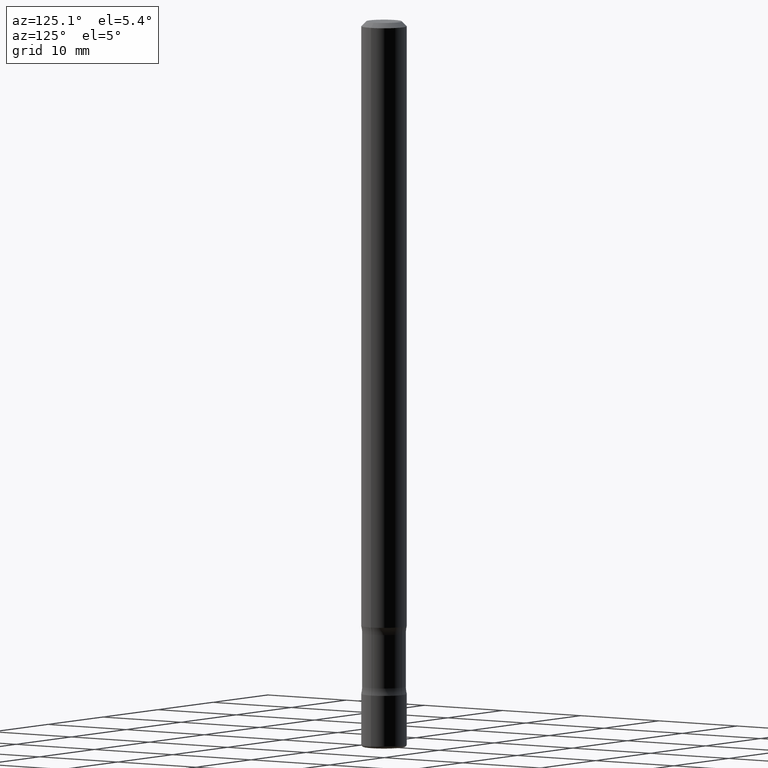
[diagram: clean part render]
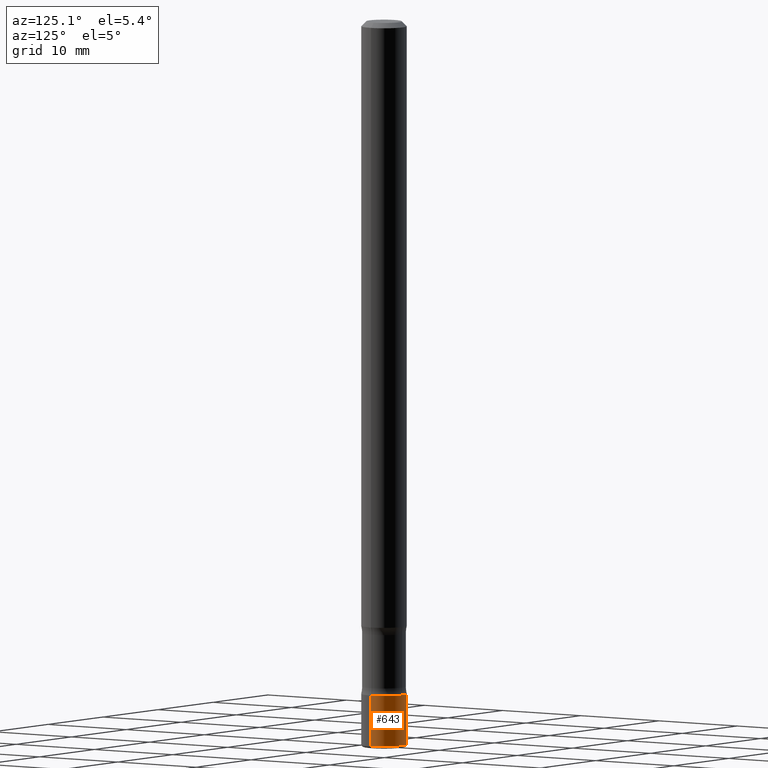
[diagram: same view with one face highlighted and labeled with its STEP entity id]
A machine part, auxiliary view. The second image highlights one B-rep face of the part: STEP entity #643.
In plain terms, the highlighted cylindrical surface (edge-blend (fillet) strip) has radius 2.3813 mm, axis along (-0, 0, 1).
Its self-contained STEP definition (entity closure, byte-faithful):
#26 = CIRCLE ( 'NONE', #91, 0.09375000000000001388 ) ;
#55 = DIRECTION ( 'NONE',  ( -2.445468806185136597E-29, 3.491481338843145583E-15, 1.000000000000000000 ) ) ;
#91 = AXIS2_PLACEMENT_3D ( 'NONE', #664, #55, #237 ) ;
#100 = EDGE_LOOP ( 'NONE', ( #608, #650, #145, #359 ) ) ;
#132 = CARTESIAN_POINT ( 'NONE',  ( 0.09375000000000005551, -1.109418195417409300E-14, -2.990000000000000213 ) ) ;
#145 = ORIENTED_EDGE ( 'NONE', *, *, #208, .F. ) ;
#165 = VERTEX_POINT ( 'NONE', #409 ) ;
#177 = CYLINDRICAL_SURFACE ( 'NONE', #289, 0.09375000000000002776 ) ;
#182 = DIRECTION ( 'NONE',  ( -2.445468806185136597E-29, 3.491481338843145583E-15, 1.000000000000000000 ) ) ;
#208 = EDGE_CURVE ( 'NONE', #675, #743, #26, .T. ) ;
#229 = VECTOR ( 'NONE', #531, 39.37007874015748143 ) ;
#237 = DIRECTION ( 'NONE',  ( 1.000000000000000000, -6.982962677686261189E-15, 0.000000000000000000 ) ) ;
#260 = VERTEX_POINT ( 'NONE', #132 ) ;
#286 = AXIS2_PLACEMENT_3D ( 'NONE', #504, #439, #384 ) ;
#289 = AXIS2_PLACEMENT_3D ( 'NONE', #427, #182, #682 ) ;
#331 = CARTESIAN_POINT ( 'NONE',  ( -0.09375000000000002776, 6.661338147750941215E-16, -4.611501647113975397E-30 ) ) ;
#359 = ORIENTED_EDGE ( 'NONE', *, *, #590, .F. ) ;
#369 = CIRCLE ( 'NONE', #286, 0.09375000000000002776 ) ;
#384 = DIRECTION ( 'NONE',  ( 1.000000000000000000, -6.982962677686260400E-15, 0.000000000000000000 ) ) ;
#395 = DIRECTION ( 'NONE',  ( -2.445468806185136877E-29, 3.491481338843145188E-15, 1.000000000000000000 ) ) ;
#404 = CARTESIAN_POINT ( 'NONE',  ( -0.09375000000000001388, -9.408884736590688213E-15, -2.781200000000000561 ) ) ;
#409 = CARTESIAN_POINT ( 'NONE',  ( -0.09375000000000005551, -9.773395388365912358E-15, -2.990000000000000213 ) ) ;
#427 = CARTESIAN_POINT ( 'NONE',  ( 0.000000000000000000, 0.000000000000000000, 0.000000000000000000 ) ) ;
#439 = DIRECTION ( 'NONE',  ( -2.445468806185136597E-29, 3.491481338843145583E-15, 1.000000000000000000 ) ) ;
#478 = VECTOR ( 'NONE', #395, 39.37007874015748143 ) ;
#503 = CARTESIAN_POINT ( 'NONE',  ( 0.09375000000000001388, -1.036516065062364471E-14, -2.781200000000000561 ) ) ;
#504 = CARTESIAN_POINT ( 'NONE',  ( 7.311951730493558245E-29, -1.043952920314100628E-14, -2.990000000000000213 ) ) ;
#507 = EDGE_CURVE ( 'NONE', #260, #165, #369, .T. ) ;
#531 = DIRECTION ( 'NONE',  ( -2.445468806185136877E-29, 3.491481338843145188E-15, 1.000000000000000000 ) ) ;
#590 = EDGE_CURVE ( 'NONE', #260, #675, #767, .T. ) ;
#608 = ORIENTED_EDGE ( 'NONE', *, *, #507, .T. ) ;
#641 = CARTESIAN_POINT ( 'NONE',  ( 0.09375000000000002776, -6.546527510330876027E-16, 4.571415727308691207E-30 ) ) ;
#642 = LINE ( 'NONE', #331, #229 ) ;
#643 = ADVANCED_FACE ( 'NONE', ( #731 ), #177, .T. ) ;
#650 = ORIENTED_EDGE ( 'NONE', *, *, #710, .T. ) ;
#664 = CARTESIAN_POINT ( 'NONE',  ( 6.801337843762102328E-29, -9.710507899590557993E-15, -2.781200000000000561 ) ) ;
#675 = VERTEX_POINT ( 'NONE', #503 ) ;
#682 = DIRECTION ( 'NONE',  ( 1.000000000000000000, -6.982962677686265922E-15, 4.876176775795935793E-29 ) ) ;
#710 = EDGE_CURVE ( 'NONE', #165, #743, #642, .T. ) ;
#731 = FACE_OUTER_BOUND ( 'NONE', #100, .T. ) ;
#743 = VERTEX_POINT ( 'NONE', #404 ) ;
#767 = LINE ( 'NONE', #641, #478 ) ;